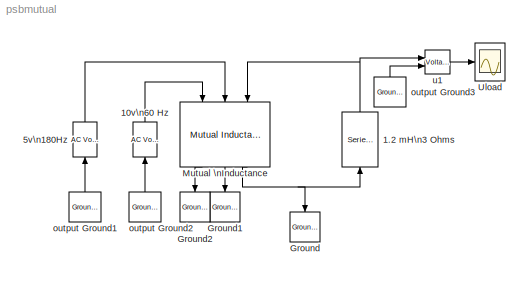
MODEL psbmutual
KIND model
CONFIG InitFcn = powericon('psbinitsys',bdroot);
BLOCK [Reference] 1.2 mH\n3 Ohms  REF=powerlib2/Elements/Series RLC Branch
  PSBOutputType = 1
  Ports = [1, 1]
  SourceBlock = powerlib2/Elements/Series RLC Branch
  SourceType = Series RLC Branch
  Tag = PoWeRsYsTeMbLoCk
  a = 3
  b = 1.2e-03
  c = inf
  mesure = None
BLOCK [Reference] 10v\n60 Hz  REF=powerlib2/Electrical\nSources/AC Voltage Source
  A = 10
  F = 60
  P = 0
  PSBOutputType = 1
  Ports = [1, 1]
  SourceBlock = powerlib2/Electrical\nSources/AC Voltage Source
  SourceType = AC Voltage Source
  Tag = PoWeRsYsTeMbLoCk
  mesure = None
  stime = 0
BLOCK [Reference] 5v\n180Hz  REF=powerlib2/Electrical\nSources/AC Voltage Source
  A = 5
  F = 180
  P = 0
  PSBOutputType = 1
  Ports = [1, 1]
  SourceBlock = powerlib2/Electrical\nSources/AC Voltage Source
  SourceType = AC Voltage Source
  Tag = PoWeRsYsTeMbLoCk
  mesure = None
  stime = 0
BLOCK [Reference] Ground  REF=powerlib2/Connectors/Ground (input)
  Ports = [1]
  SourceBlock = powerlib2/Connectors/Ground (input)
  SourceType = Ground
  Tag = PoWeRsYsTeMbLoCk
BLOCK [Reference] Ground1  REF=powerlib2/Connectors/Ground (input)
  Ports = [1]
  SourceBlock = powerlib2/Connectors/Ground (input)
  SourceType = Ground
  Tag = PoWeRsYsTeMbLoCk
BLOCK [Reference] Ground2  REF=powerlib2/Connectors/Ground (input)
  Ports = [1]
  SourceBlock = powerlib2/Connectors/Ground (input)
  SourceType = Ground
  Tag = PoWeRsYsTeMbLoCk
BLOCK [Reference] Mutual \nInductance  REF=powerlib2/Elements/Mutual Inductance
  PSBOutputType = 111
  Ports = [3, 3]
  SourceBlock = powerlib2/Elements/Mutual Inductance
  SourceType = Mutual Inductance
  Tag = PoWeRsYsTeMbLoCk
  a = [1.1 1.1e-03]
  b = [ 1.1 1.1e-03]
  c = [ 1.1 1.1e-03]
  d = [1.0 1.0e-03]
  mesure = None
  w3check = on
BLOCK [Scope] Uload
  DataFormat = Array
  NumInputPorts = 1
  Ports = [1]
  TickLabels = on
  TimeRange = 0.1
  YMax = 10
  YMin = -10
BLOCK [Reference] output Ground1  REF=powerlib2/Connectors/Ground (output)
  PSBOutputType = 1
  Ports = [0, 1]
  SourceBlock = powerlib2/Connectors/Ground (output)
  SourceType = Ground
  Tag = PoWeRsYsTeMbLoCk
BLOCK [Reference] output Ground2  REF=powerlib2/Connectors/Ground (output)
  PSBOutputType = 1
  Ports = [0, 1]
  SourceBlock = powerlib2/Connectors/Ground (output)
  SourceType = Ground
  Tag = PoWeRsYsTeMbLoCk
BLOCK [Reference] output Ground3  REF=powerlib2/Connectors/Ground (output)
  PSBOutputType = 1
  Ports = [0, 1]
  SourceBlock = powerlib2/Connectors/Ground (output)
  SourceType = Ground
  Tag = PoWeRsYsTeMbLoCk
BLOCK [Reference] u1  REF=powerlib2/Measurements/Voltage Measurement
  OutputType = Magnitude
  PSBOutputType = 0
  PSBequivalent = 0
  PhasorSimulation = off
  Ports = [2, 1]
  SourceBlock = powerlib2/Measurements/Voltage Measurement
  SourceType = Voltage Measurement
  Tag = PoWeRsYsTeMmEaSuReMeNt
NET 1.2 mH\n3 Ohms:1 -> Mutual \nInductance:3, u1:1
LINE 10v\n60 Hz:1 -> Mutual \nInductance:1
LINE 5v\n180Hz:1 -> Mutual \nInductance:2
LINE Mutual \nInductance:1 -> Ground2:1
LINE Mutual \nInductance:2 -> Ground1:1
NET Mutual \nInductance:3 -> 1.2 mH\n3 Ohms:1, Ground:1
LINE output Ground1:1 -> 5v\n180Hz:1
LINE output Ground2:1 -> 10v\n60 Hz:1
LINE output Ground3:1 -> u1:2
LINE u1:1 -> Uload:1
note: NET lines group one-source signal fan-out (src -> all destinations, sorted); 1:1 wires keep LINE
